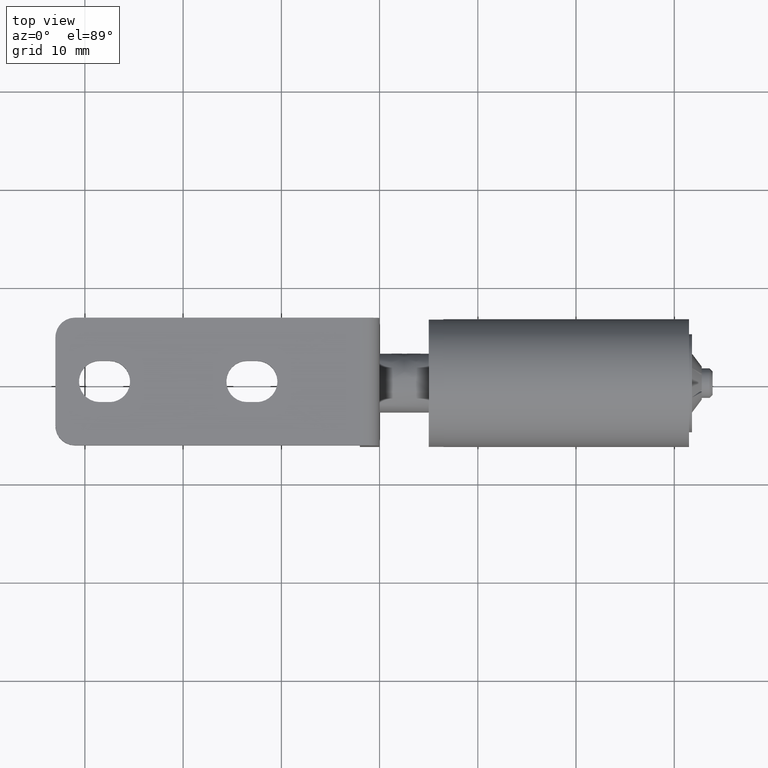
[diagram: clean part render]
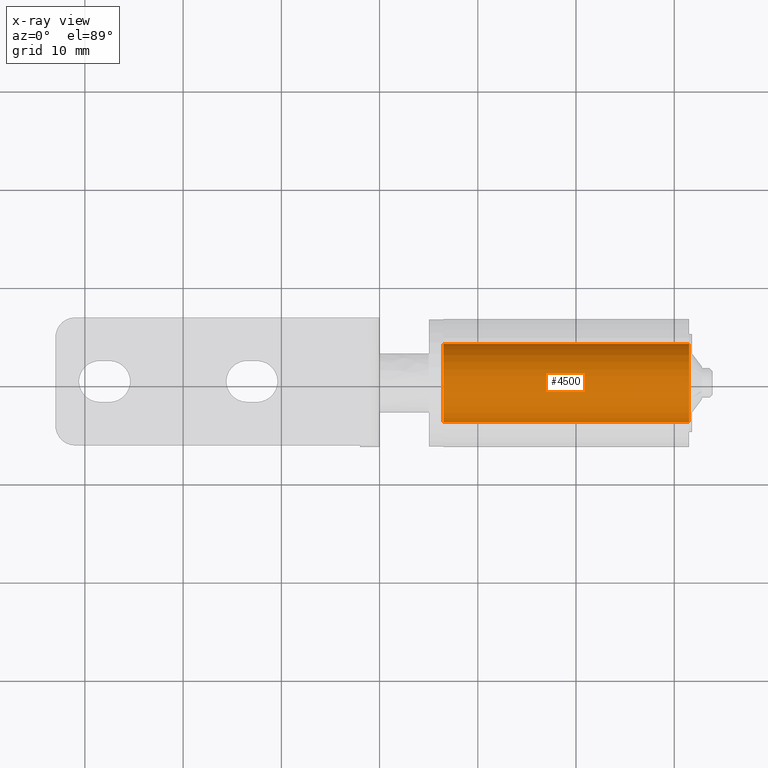
[diagram: x-ray — body ghosted, one internal face saturated and labeled with its STEP entity id]
A machine part, top view, then the same camera in x-ray: the body is ghosted and one INTERNAL B-rep face — a face not visible from any outside direction — is saturated and labeled: STEP entity #4500.
In plain terms, the highlighted face is a freeform B-spline surface patch.
Its self-contained STEP definition (entity closure, byte-faithful):
#4333=CARTESIAN_POINT('',(31.500000000000028,-3.972038871697528,0.472130492217647));
#4334=VERTEX_POINT('',#4333);
#4352=CARTESIAN_POINT('',(31.500000000000000,3.992539193685865,-0.244194158165632));
#4353=VERTEX_POINT('',#4352);
#4367=CARTESIAN_POINT('',(6.500000000000000,3.992539193685865,-0.244194158165632));
#4368=VERTEX_POINT('',#4367);
#4369=CARTESIAN_POINT('',(6.500000000000000,3.992539193685865,-0.244194158165632));
#4370=CARTESIAN_POINT('',(31.500000000000000,3.992539193685865,-0.244194158165632));
#4371=QUASI_UNIFORM_CURVE('',1,(#4369,#4370),.UNSPECIFIED.,.F.,.U.);
#4372=EDGE_CURVE('',#4368,#4353,#4371,.T.);
#4389=CARTESIAN_POINT('',(6.500000000000000,-3.972038862223103,0.472130571927181));
#4390=VERTEX_POINT('',#4389);
#4406=CARTESIAN_POINT('',(6.500000000000000,-3.972038862223103,0.472130571927181));
#4407=CARTESIAN_POINT('',(31.500000000000028,-3.972038871697528,0.472130492217647));
#4408=QUASI_UNIFORM_CURVE('',1,(#4406,#4407),.UNSPECIFIED.,.F.,.U.);
#4409=EDGE_CURVE('',#4390,#4334,#4408,.T.);
#4414=CARTESIAN_POINT('',(5.874999999999996,3.989174151193565,-0.299212116585648));
#4415=CARTESIAN_POINT('',(5.875000000000000,3.990851856829548,-0.271781871905918));
#4416=CARTESIAN_POINT('',(5.874999999999998,4.236733351826894,3.748345035548039));
#4417=CARTESIAN_POINT('',(5.874999999999998,0.244194158139428,3.992539193687467));
#4418=CARTESIAN_POINT('',(5.874999999999998,-3.526173963358004,4.223144786930110));
#4419=CARTESIAN_POINT('',(5.874999999999999,-3.975376501572324,0.444051365341873));
#4420=CARTESIAN_POINT('',(5.875000000000000,-3.978696955260494,0.416116739817423));
#4421=CARTESIAN_POINT('',(32.140624999999986,3.989174151193565,-0.299212116585648));
#4422=CARTESIAN_POINT('',(32.140625000000021,3.990851856829548,-0.271781871905918));
#4423=CARTESIAN_POINT('',(32.140625000000000,4.236733351826894,3.748345035548039));
#4424=CARTESIAN_POINT('',(32.140625000000000,0.244194158139428,3.992539193687467));
#4425=CARTESIAN_POINT('',(32.140625000000007,-3.526173963358004,4.223144786930110));
#4426=CARTESIAN_POINT('',(32.140625000000000,-3.975376501572324,0.444051365341873));
#4427=CARTESIAN_POINT('',(32.140625000000000,-3.978696955260494,0.416116739817423));
#4435=(BOUNDED_SURFACE()B_SPLINE_SURFACE(2,1,((#4414,#4421),(#4415,#4422),(#4416,#4423),(#4417,#4424),(#4418,#4425),(#4419,#4426),(#4420,#4427)),.UNSPECIFIED.,.F.,.F.,.U.)B_SPLINE_SURFACE_WITH_KNOTS((3,1,2,1,3),(2,2),(0.0,0.064948722331905,6.692365720301424,13.054686038352161,13.119642195175199),(0.0,26.265625000000011),.UNSPECIFIED.)GEOMETRIC_REPRESENTATION_ITEM()RATIONAL_B_SPLINE_SURFACE(((1.005740710248787,1.005740710248787),(1.002870355124393,1.002870355124393),(0.707106781186548,0.707106781186548),(1.0,1.0),(0.718822509939086,0.718822509939086),(0.980146829785866,0.980146829785866),(0.982787858776606,0.982787858776606)))REPRESENTATION_ITEM('')SURFACE());
#4436=CARTESIAN_POINT('',(31.500000000000000,0.0,4.0));
#4437=VERTEX_POINT('',#4436);
#4438=CARTESIAN_POINT('',(31.500000000000000,0.0,4.0));
#4439=CARTESIAN_POINT('',(31.500000000000004,-3.552703910240819,4.000000000000001));
#4440=CARTESIAN_POINT('',(31.500000000000032,-3.972038871697528,0.472130492217647));
#4448=(BOUNDED_CURVE()B_SPLINE_CURVE(2,(#4438,#4439,#4440),.UNSPECIFIED.,.F.,.U.)B_SPLINE_CURVE_WITH_KNOTS((3,3),(0.0,0.229562747799074),.UNSPECIFIED.)CURVE()GEOMETRIC_REPRESENTATION_ITEM()RATIONAL_B_SPLINE_CURVE((1.0,0.731050511509874,0.956027291795338))REPRESENTATION_ITEM(''));
#4449=EDGE_CURVE('',#4437,#4334,#4448,.T.);
#4450=ORIENTED_EDGE('',*,*,#4449,.T.);
#4451=ORIENTED_EDGE('',*,*,#4409,.F.);
#4452=CARTESIAN_POINT('',(6.500000000000000,0.0,4.0));
#4453=VERTEX_POINT('',#4452);
#4454=CARTESIAN_POINT('',(6.500000000000000,0.0,4.0));
#4455=CARTESIAN_POINT('',(6.500000000000003,-3.552703838444494,4.0));
#4456=CARTESIAN_POINT('',(6.500000000000000,-3.972038862223102,0.472130571927181));
#4464=(BOUNDED_CURVE()B_SPLINE_CURVE(2,(#4454,#4455,#4456),.UNSPECIFIED.,.F.,.U.)B_SPLINE_CURVE_WITH_KNOTS((3,3),(0.0,0.229562744407573),.UNSPECIFIED.)CURVE()GEOMETRIC_REPRESENTATION_ITEM()RATIONAL_B_SPLINE_CURVE((1.0,0.731050515483265,0.956027285147839))REPRESENTATION_ITEM(''));
#4465=EDGE_CURVE('',#4453,#4390,#4464,.T.);
#4466=ORIENTED_EDGE('',*,*,#4465,.F.);
#4467=CARTESIAN_POINT('',(6.500000000000000,3.992539193685865,-0.244194158165632));
#4468=CARTESIAN_POINT('',(6.499999999999999,4.000000000000000,-0.122211053220633));
#4469=CARTESIAN_POINT('',(6.500000000000000,4.0,0.0));
#4470=CARTESIAN_POINT('',(6.500000000000001,4.000000000000000,4.000000000000000));
#4471=CARTESIAN_POINT('',(6.500000000000000,0.0,4.0));
#4479=(BOUNDED_CURVE()B_SPLINE_CURVE(2,(#4467,#4468,#4469,#4470,#4471),.UNSPECIFIED.,.F.,.U.)B_SPLINE_CURVE_WITH_KNOTS((3,2,3),(0.739332962239703,0.750000000000000,1.0),.UNSPECIFIED.)CURVE()GEOMETRIC_REPRESENTATION_ITEM()RATIONAL_B_SPLINE_CURVE((0.976072041668347,0.987502787900728,1.0,0.707106781186548,1.0))REPRESENTATION_ITEM(''));
#4480=EDGE_CURVE('',#4368,#4453,#4479,.T.);
#4481=ORIENTED_EDGE('',*,*,#4480,.F.);
#4482=ORIENTED_EDGE('',*,*,#4372,.T.);
#4483=CARTESIAN_POINT('',(31.500000000000004,3.992539193685865,-0.244194158165632));
#4484=CARTESIAN_POINT('',(31.500000000000000,4.000000000000000,-0.122211053220633));
#4485=CARTESIAN_POINT('',(31.500000000000000,4.0,0.0));
#4486=CARTESIAN_POINT('',(31.500000000000000,4.000000000000000,4.000000000000000));
#4487=CARTESIAN_POINT('',(31.500000000000000,0.0,4.0));
#4495=(BOUNDED_CURVE()B_SPLINE_CURVE(2,(#4483,#4484,#4485,#4486,#4487),.UNSPECIFIED.,.F.,.U.)B_SPLINE_CURVE_WITH_KNOTS((3,2,3),(0.739332962239703,0.750000000000000,1.0),.UNSPECIFIED.)CURVE()GEOMETRIC_REPRESENTATION_ITEM()RATIONAL_B_SPLINE_CURVE((0.976072041668347,0.987502787900728,1.0,0.707106781186548,1.0))REPRESENTATION_ITEM(''));
#4496=EDGE_CURVE('',#4353,#4437,#4495,.T.);
#4497=ORIENTED_EDGE('',*,*,#4496,.T.);
#4498=EDGE_LOOP('',(#4450,#4451,#4466,#4481,#4482,#4497));
#4499=FACE_OUTER_BOUND('',#4498,.T.);
#4500=ADVANCED_FACE('',(#4499),#4435,.F.);